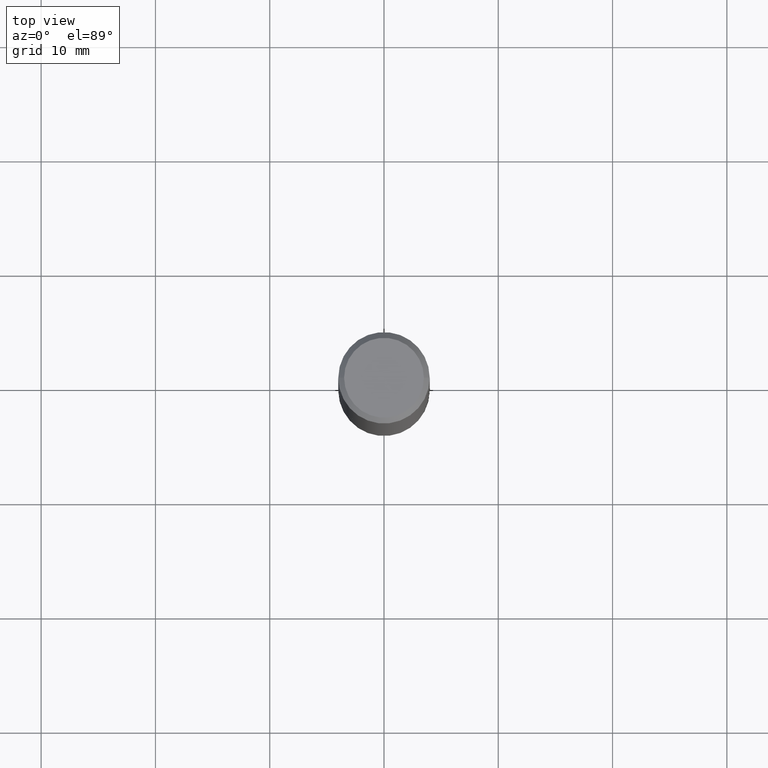
[diagram: clean part render]
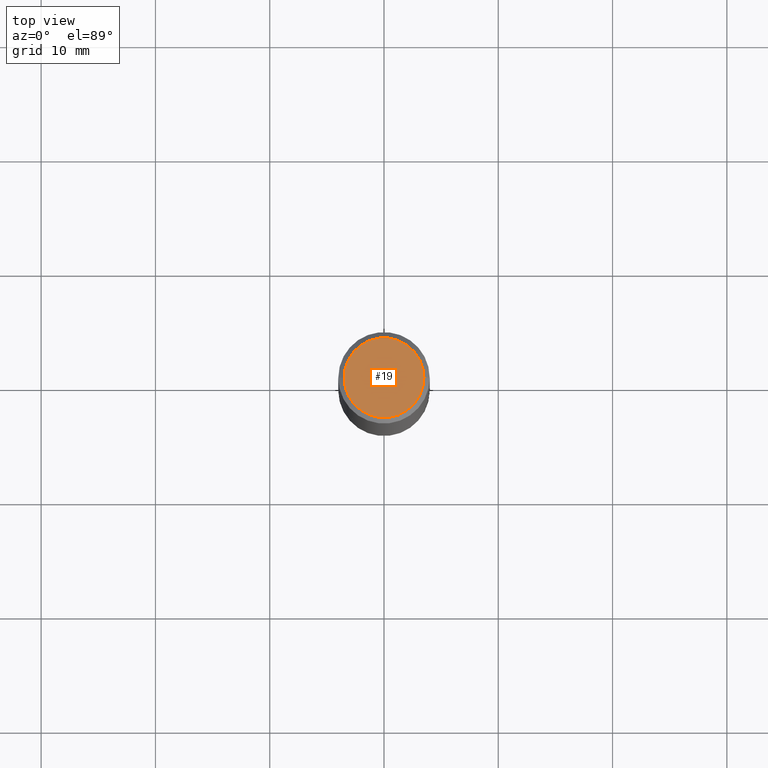
[diagram: same view with one face highlighted and labeled with its STEP entity id]
A machine part, top view. The second image highlights one B-rep face of the part: STEP entity #19.
In plain terms, the highlighted planar face has unit normal (0, -0, -1).
Its self-contained STEP definition (entity closure, byte-faithful):
#8 = CIRCLE ( 'NONE', #221, 0.1374999999999997613 ) ;
#19 = ADVANCED_FACE ( 'NONE', ( #43 ), #266, .F. ) ;
#43 = FACE_OUTER_BOUND ( 'NONE', #92, .T. ) ;
#59 = AXIS2_PLACEMENT_3D ( 'NONE', #278, #147, #127 ) ;
#66 = ORIENTED_EDGE ( 'NONE', *, *, #233, .T. ) ;
#70 = EDGE_CURVE ( 'NONE', #303, #143, #8, .T. ) ;
#92 = EDGE_LOOP ( 'NONE', ( #105, #66 ) ) ;
#105 = ORIENTED_EDGE ( 'NONE', *, *, #70, .T. ) ;
#127 = DIRECTION ( 'NONE',  ( 1.000000000000000000, -6.982962677686265922E-15, 4.876173381029109010E-29 ) ) ;
#143 = VERTEX_POINT ( 'NONE', #366 ) ;
#147 = DIRECTION ( 'NONE',  ( -2.445468806185136597E-29, 3.491481338843145583E-15, 1.000000000000000000 ) ) ;
#151 = CIRCLE ( 'NONE', #59, 0.1374999999999997613 ) ;
#152 = DIRECTION ( 'NONE',  ( 1.000000000000000000, -6.982962677686265922E-15, 4.876173381029109010E-29 ) ) ;
#154 = DIRECTION ( 'NONE',  ( -2.445468806185136597E-29, 3.491481338843145583E-15, 1.000000000000000000 ) ) ;
#174 = AXIS2_PLACEMENT_3D ( 'NONE', #220, #299, #262 ) ;
#187 = CARTESIAN_POINT ( 'NONE',  ( -0.1374999999999997613, 9.950721815702909552E-16, 4.268512490093574228E-18 ) ) ;
#220 = CARTESIAN_POINT ( 'NONE',  ( 9.601573681818598978E-16, 0.1374999999999997613, -4.779444278458815105E-16 ) ) ;
#221 = AXIS2_PLACEMENT_3D ( 'NONE', #350, #154, #152 ) ;
#233 = EDGE_CURVE ( 'NONE', #143, #303, #151, .T. ) ;
#262 = DIRECTION ( 'NONE',  ( -1.000000000000000000, 6.982962677686265922E-15, -4.876176775795935793E-29 ) ) ;
#266 = PLANE ( 'NONE',  #174 ) ;
#278 = CARTESIAN_POINT ( 'NONE',  ( -1.043851414335219820E-46, 1.490343170380447200E-32, 4.268512490100411279E-18 ) ) ;
#299 = DIRECTION ( 'NONE',  ( 2.438088387897960049E-29, -3.491481338843145188E-15, -1.000000000000000000 ) ) ;
#303 = VERTEX_POINT ( 'NONE', #187 ) ;
#350 = CARTESIAN_POINT ( 'NONE',  ( -1.043851414335219820E-46, 1.490343170380447200E-32, 4.268512490100411279E-18 ) ) ;
#366 = CARTESIAN_POINT ( 'NONE',  ( 0.1374999999999997613, -1.046838268059730717E-15, 4.268512490107428597E-18 ) ) ;